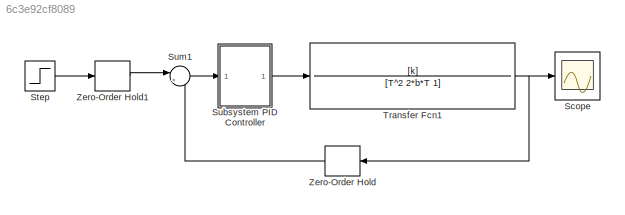
MODEL slx_6c3e92cf8089
KIND model
CONFIG AbsTol = auto
CONFIG EnableMultiTasking = off
CONFIG FixedStep = 0.07
CONFIG MaxStep = auto
CONFIG MinStep = auto
CONFIG RelTol = 1e-3
CONFIG SampleTimeConstraint = Unconstrained
CONFIG SolverName = FixedStepAuto
CONFIG StartTime = 0.0
CONFIG StopTime = 5
BLOCK [Scope] Scope
  Floating = off
  NumInputPorts = 1
  Ports = [1]
  ScopeSpecificationString = Simulink.scopes.TimeScopeBlockCfg('CurrentConfiguration', extmgr.ConfigurationSet(extmgr.Configuration('Core','General UI',true),extmgr.Configuration('Core','Source UI',true),extmgr.Configuration('Sources','WiredSimulink',true),extmgr.Configuration('Visuals','Time Domain',true,'SerializedDisplays',{struct('MinYLimReal','-0.13326','MaxYLimReal','1.19936','YLabelReal','','MinYLimMag','0.00000','MaxY...<+1388ch>
BLOCK [Step] Step
  SampleTime = 0
  Time = 0
  VectorParams1D = off
  ZeroCross = off
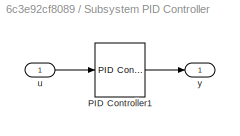
BLOCK [SubSystem] Subsystem PID Controller
  Ports = [1, 1]
  RequestExecContextInheritance = off
  SystemSampleTime = 0.07
  TreatAsAtomicUnit = on
BLOCK [Reference] Subsystem PID Controller/PID Controller1  REF=slpidlib/PID Controller
  Ports = [1, 1]
  SourceBlock = slpidlib/PID Controller
  SourceProductBaseCode = SL
  SourceType = PID 1dof
BLOCK [Inport] Subsystem PID Controller/u
BLOCK [Outport] Subsystem PID Controller/y
BLOCK [Sum] Sum1
  Inputs = |+-
  Ports = [2, 1]
BLOCK [TransferFcn] Transfer Fcn1
  Denominator = [T^2 2*b*T 1]
  Numerator = [k]
BLOCK [ZeroOrderHold] Zero-Order Hold
  SampleTime = 0.07
BLOCK [ZeroOrderHold] Zero-Order Hold1
  SampleTime = 0.07
LINE Step:1 -> Zero-Order Hold1:1
LINE Subsystem PID Controller/PID Controller1:1 -> Subsystem PID Controller/y:1
LINE Subsystem PID Controller/u:1 -> Subsystem PID Controller/PID Controller1:1
LINE Subsystem PID Controller:1 -> Transfer Fcn1:1
LINE Sum1:1 -> Subsystem PID Controller:1
NET Transfer Fcn1:1 -> Scope:1, Zero-Order Hold:1
LINE Zero-Order Hold1:1 -> Sum1:1
LINE Zero-Order Hold:1 -> Sum1:2
note: NET lines group one-source signal fan-out (src -> all destinations, sorted); 1:1 wires keep LINE
